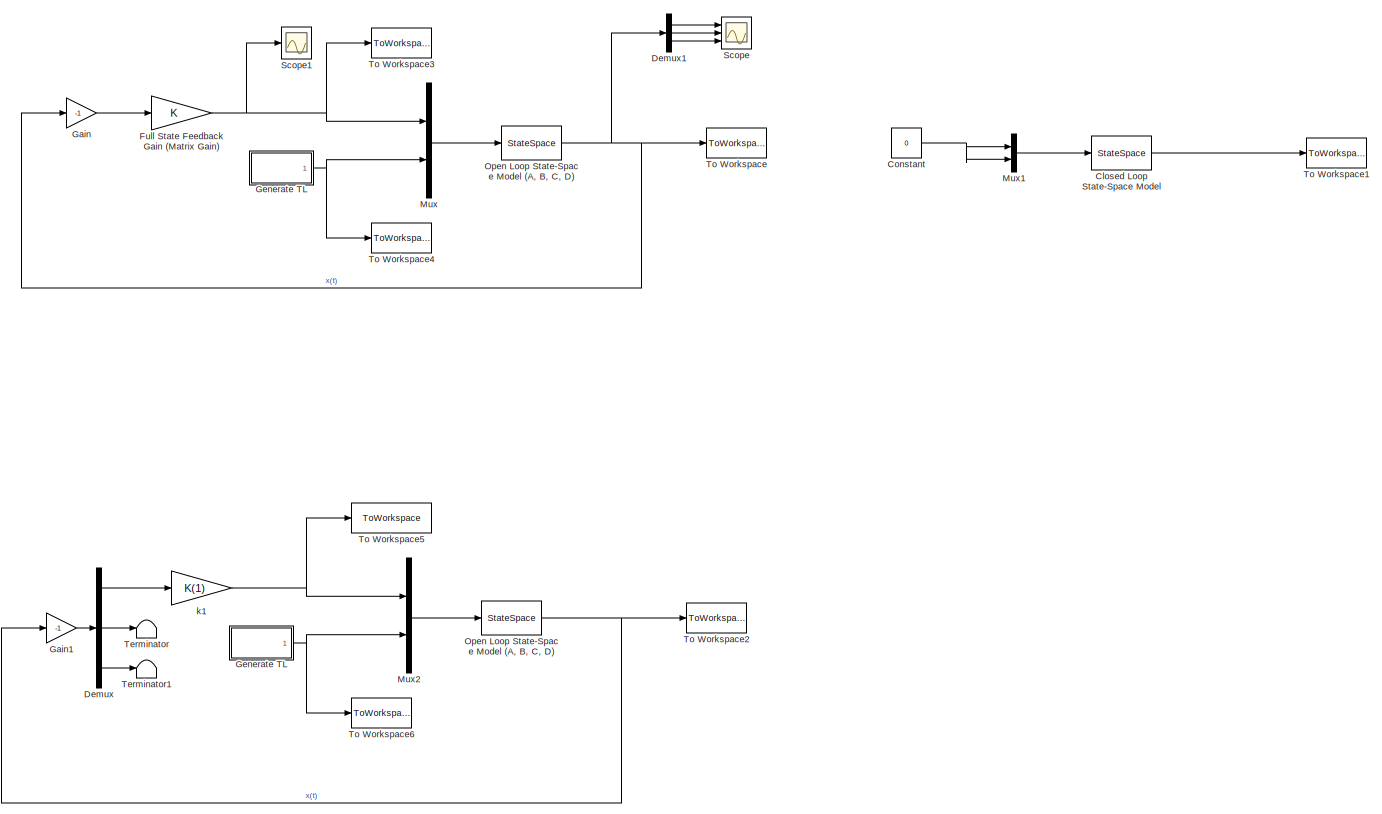
[diagram: root canvas - part 1/1, most of the canvas]
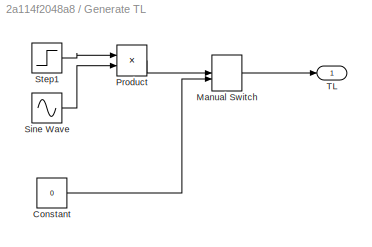
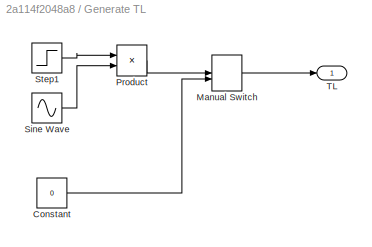
MODEL slx_2a114f2048a8
KIND model
CONFIG AbsTol = auto
CONFIG EnableMultiTasking = on
CONFIG FixedStep = auto
CONFIG MaxStep = auto
CONFIG MinStep = auto
CONFIG RelTol = 1e-3
CONFIG SampleTimeConstraint = Unconstrained
CONFIG Solver = ode45
CONFIG SolverName = ode45
CONFIG StartTime = 0.0
CONFIG StopTime = t_final
BLOCK [StateSpace] Closed Loop State-Space Model
  A = Acl
  B = zeros(3,2)
  C = eye(3)
  D = zeros(3,2)
  Ports = [1, 1]
  X0 = x0
BLOCK [Constant] Constant
  Value = 0
BLOCK [Demux] Demux
  DisplayOption = bar
  Outputs = 3
  Ports = [1, 3]
BLOCK [Demux] Demux1
  DisplayOption = bar
  Outputs = 3
  Ports = [1, 3]
BLOCK [Gain] Full State Feedback Gain (Matrix Gain)
  Gain = K
  Multiplication = Matrix(K*u)
  OutDataTypeStr = Inherit: Inherit via internal rule
  ParamDataTypeStr = Inherit: Inherit via internal rule
  SaturateOnIntegerOverflow = off
BLOCK [Gain] Gain
  Gain = -1
  OutDataTypeStr = Inherit: Inherit via internal rule
  ParamDataTypeStr = Inherit: Inherit via internal rule
  SaturateOnIntegerOverflow = off
BLOCK [Gain] Gain1
  Gain = -1
  OutDataTypeStr = Inherit: Inherit via internal rule
  ParamDataTypeStr = Inherit: Inherit via internal rule
  SaturateOnIntegerOverflow = off
BLOCK [SubSystem] Generate TL
  Ports = [0, 1]
  RequestExecContextInheritance = off
  Variant = off
BLOCK [SubSystem] Generate TL 
  Ports = [0, 1]
  RequestExecContextInheritance = off
  Variant = off
BLOCK [Constant] Generate TL /Constant
  Value = 0
BLOCK [ManualSwitch] Generate TL /Manual Switch
  CurrentSetting = 0
BLOCK [Product] Generate TL /Product
  InputSameDT = off
  OutDataTypeStr = Inherit: Inherit via internal rule
  Ports = [2, 1]
  SaturateOnIntegerOverflow = off
BLOCK [Sin] Generate TL /Sine Wave
  Ports = [0, 1]
  SampleTime = 0
BLOCK [Step] Generate TL /Step1
  SampleTime = 0
  Time = 3
BLOCK [Outport] Generate TL /TL
  IconDisplay = Port number
BLOCK [Constant] Generate TL/Constant
  Value = 0
BLOCK [ManualSwitch] Generate TL/Manual Switch
  CurrentSetting = 0
BLOCK [Product] Generate TL/Product
  InputSameDT = off
  OutDataTypeStr = Inherit: Inherit via internal rule
  Ports = [2, 1]
  SaturateOnIntegerOverflow = off
BLOCK [Sin] Generate TL/Sine Wave
  Ports = [0, 1]
  SampleTime = 0
BLOCK [Step] Generate TL/Step1
  SampleTime = 0
  Time = 3
BLOCK [Outport] Generate TL/TL
  IconDisplay = Port number
BLOCK [Mux] Mux
  DisplayOption = bar
  Inputs = 2
  Ports = [2, 1]
BLOCK [Mux] Mux1
  DisplayOption = bar
  Inputs = 2
  Ports = [2, 1]
BLOCK [Mux] Mux2
  DisplayOption = bar
  Inputs = 2
  Ports = [2, 1]
BLOCK [StateSpace] Open Loop State-Space Model (A, B, C, D)
  A = A
  B = B
  C = C
  D = D
  Ports = [1, 1]
  X0 = x0
BLOCK [StateSpace] Open Loop State-Space Model (A, B, C, D) 
  A = A
  B = B
  C = C
  D = D
  Ports = [1, 1]
  X0 = x0
BLOCK [Scope] Scope
  NumInputPorts = 3
  Ports = [3]
  ScopeSpecificationString = Simulink.scopes.TimeScopeBlockCfg('CurrentConfiguration', extmgr.ConfigurationSet(extmgr.Configuration('Core','General UI',true),extmgr.Configuration('Core','Source UI',true),extmgr.Configuration('Sources','WiredSimulink',true,'DataLoggingSaveFormat','StructureWithTime','DataLoggingLimitDataPoints',true,'DataLoggingDecimation','1','DataLoggingDecimateData',true),extmgr.Configuration('Visuals','Tim...<+3023ch>
BLOCK [Scope] Scope1
  NumInputPorts = 1
  Ports = [1]
  ScopeSpecificationString = Simulink.scopes.TimeScopeBlockCfg('CurrentConfiguration', extmgr.ConfigurationSet(extmgr.Configuration('Core','General UI',true),extmgr.Configuration('Core','Source UI',true),extmgr.Configuration('Sources','WiredSimulink',true,'DataLoggingVariableName','ScopeData1','DataLoggingSaveFormat','StructureWithTime','DataLoggingLimitDataPoints',true,'DataLoggingDecimation','1','DataLoggingDecimateData',tr...<+1770ch>
BLOCK [Terminator] Terminator
BLOCK [Terminator] Terminator1
BLOCK [ToWorkspace] To Workspace
  MaxDataPoints = inf
  Ports = [1]
  SampleTime = -1
  SaveFormat = Structure With Time
  VariableName = sim_X
BLOCK [ToWorkspace] To Workspace1
  MaxDataPoints = inf
  Ports = [1]
  SampleTime = -1
  SaveFormat = Structure With Time
  VariableName = sim_Xcl
BLOCK [ToWorkspace] To Workspace2
  MaxDataPoints = inf
  Ports = [1]
  SampleTime = -1
  SaveFormat = Structure With Time
  VariableName = sim_X_tilde
BLOCK [ToWorkspace] To Workspace3
  MaxDataPoints = inf
  Ports = [1]
  SampleTime = -1
  SaveFormat = Structure With Time
  VariableName = sim_Va
BLOCK [ToWorkspace] To Workspace4
  MaxDataPoints = inf
  Ports = [1]
  SampleTime = -1
  SaveFormat = Structure With Time
  VariableName = sim_TL
BLOCK [ToWorkspace] To Workspace5
  MaxDataPoints = inf
  Ports = [1]
  SampleTime = -1
  SaveFormat = Structure With Time
  VariableName = sim_Va_tilde
BLOCK [ToWorkspace] To Workspace6
  MaxDataPoints = inf
  Ports = [1]
  SampleTime = -1
  SaveFormat = Structure With Time
  VariableName = sim_TL1
BLOCK [Gain] k1
  Gain = K(1)
  OutDataTypeStr = Inherit: Inherit via internal rule
  ParamDataTypeStr = Inherit: Inherit via internal rule
  SaturateOnIntegerOverflow = off
LINE Closed Loop State-Space Model:1 -> To Workspace1:1
NET Constant:1 -> Mux1:1, Mux1:2
LINE Demux1:1 -> Scope:1
LINE Demux1:2 -> Scope:2
LINE Demux1:3 -> Scope:3
LINE Demux:1 -> k1:1
LINE Demux:2 -> Terminator:1
LINE Demux:3 -> Terminator1:1
NET Full State Feedback Gain (Matrix Gain):1 -> Mux:1, Scope1:1, To Workspace3:1
LINE Gain1:1 -> Demux:1
LINE Gain:1 -> Full State Feedback Gain (Matrix Gain):1
LINE Generate TL /Constant:1 -> Generate TL /Manual Switch:2
LINE Generate TL /Manual Switch:1 -> Generate TL /TL:1
LINE Generate TL /Product:1 -> Generate TL /Manual Switch:1
LINE Generate TL /Sine Wave:1 -> Generate TL /Product:2
LINE Generate TL /Step1:1 -> Generate TL /Product:1
NET Generate TL :1 -> Mux2:2, To Workspace6:1
LINE Generate TL/Constant:1 -> Generate TL/Manual Switch:2
LINE Generate TL/Manual Switch:1 -> Generate TL/TL:1
LINE Generate TL/Product:1 -> Generate TL/Manual Switch:1
LINE Generate TL/Sine Wave:1 -> Generate TL/Product:2
LINE Generate TL/Step1:1 -> Generate TL/Product:1
NET Generate TL:1 -> Mux:2, To Workspace4:1
LINE Mux1:1 -> Closed Loop State-Space Model:1
LINE Mux2:1 -> Open Loop State-Space Model (A, B, C, D) :1
LINE Mux:1 -> Open Loop State-Space Model (A, B, C, D):1
NET Open Loop State-Space Model (A, B, C, D) :1 -> Gain1:1, To Workspace2:1
NET Open Loop State-Space Model (A, B, C, D):1 -> Demux1:1, Gain:1, To Workspace:1
NET k1:1 -> Mux2:1, To Workspace5:1
note: NET lines group one-source signal fan-out (src -> all destinations, sorted); 1:1 wires keep LINE
